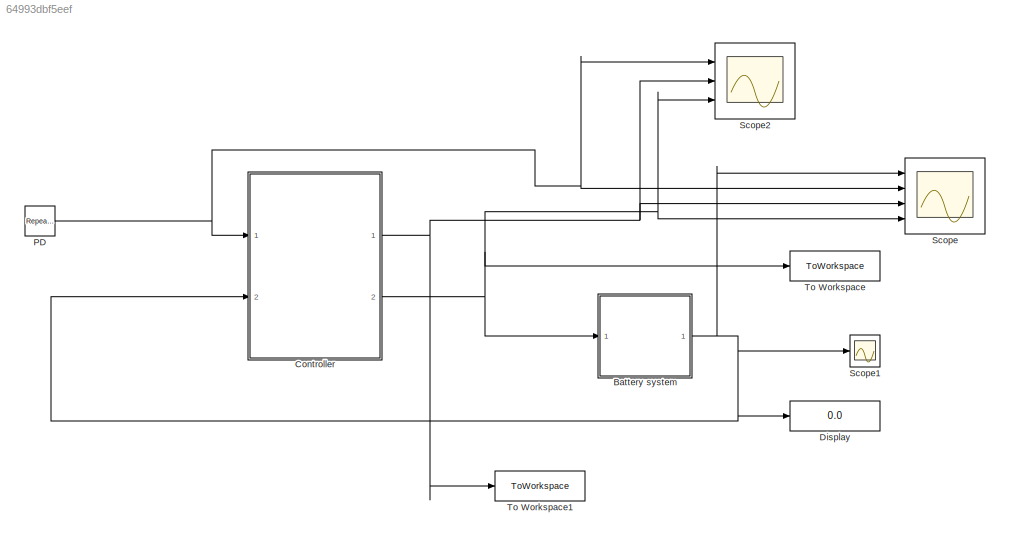
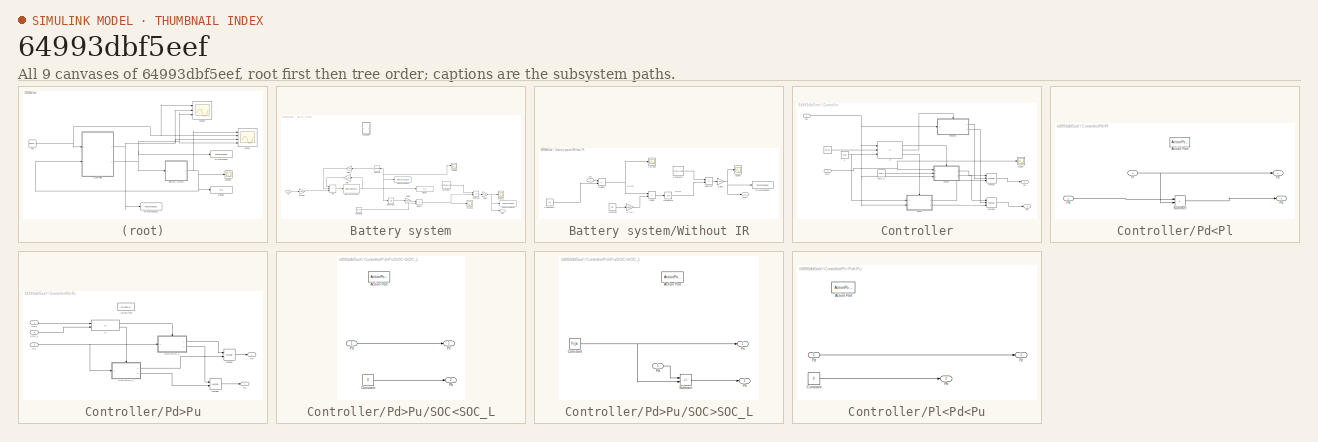
[diagram: thumbnail index - all 9 canvases of the model, root first then tree order]
MODEL slx_64993dbf5eef
KIND model
CONFIG AbsTol = auto
CONFIG EnableMultiTasking = off
CONFIG FixedStep = auto
CONFIG MaxStep = auto
CONFIG MinStep = auto
CONFIG RelTol = 1
CONFIG SampleTimeConstraint = Unconstrained
CONFIG SolverName = VariableStepAuto
CONFIG StartTime = 0.0
CONFIG StopTime = 8210
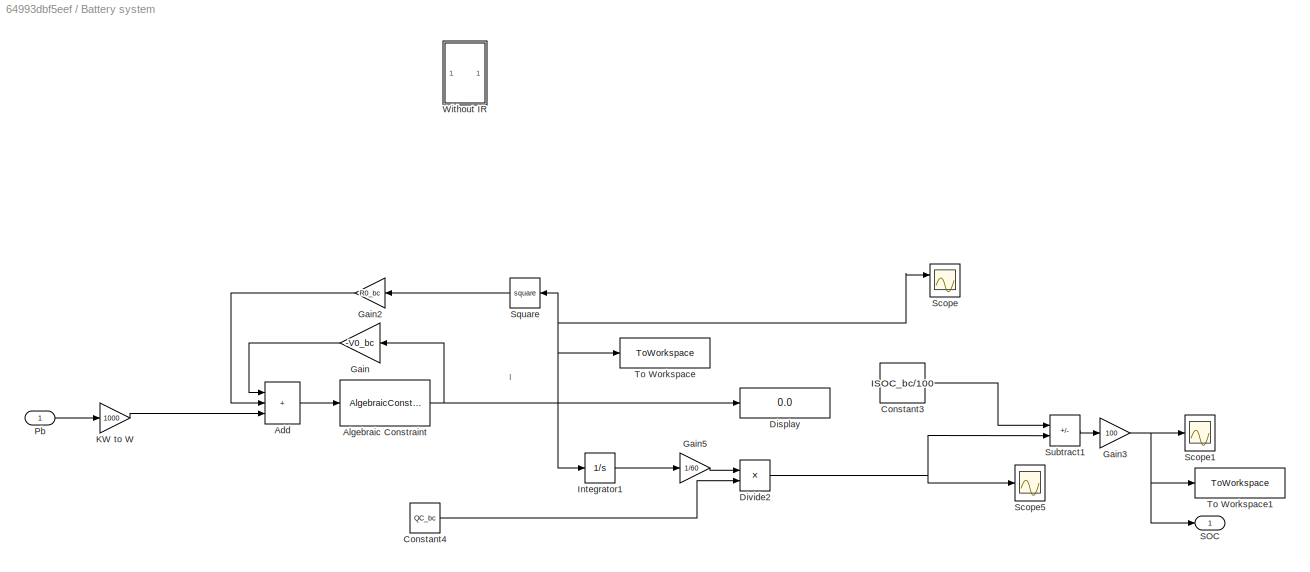
BLOCK [SubSystem] Battery system
  Ports = [1, 1]
  RequestExecContextInheritance = off
BLOCK [Sum] Battery system/Add
  IconShape = rectangular
  Inputs = +++
  Ports = [3, 1]
BLOCK [AlgebraicConstraint] Battery system/Algebraic Constraint
  InitialGuess = -999999999999
BLOCK [Constant] Battery system/Constant3
  Value = ISOC_bc/100
BLOCK [Constant] Battery system/Constant4
  Value = QC_bc
BLOCK [Display] Battery system/Display
  Decimation = 1
  Ports = [1]
BLOCK [Product] Battery system/Divide2
  Inputs = */
  Ports = [2, 1]
BLOCK [Gain] Battery system/Gain
  Gain = -V0_bc
  NameLocation = top
BLOCK [Gain] Battery system/Gain2
  Gain = R0_bc
  NameLocation = top
BLOCK [Gain] Battery system/Gain3
  Gain = 100
BLOCK [Gain] Battery system/Gain5
  Gain = 1/60
BLOCK [Integrator] Battery system/Integrator1
  Ports = [1, 1]
BLOCK [Gain] Battery system/KW to W
  Gain = 1000
BLOCK [Inport] Battery system/Pb
BLOCK [Outport] Battery system/SOC
BLOCK [Scope] Battery system/Scope
  Floating = off
  NumInputPorts = 2
  Ports = [2]
  ScopeSpecificationString = Simulink.scopes.TimeScopeBlockCfg('CurrentConfiguration', extmgr.ConfigurationSet(extmgr.Configuration('Core','General UI',true),extmgr.Configuration('Core','Source UI',true),extmgr.Configuration('Sources','WiredSimulink',true,'DataLoggingVariableName','ScopeData1'),extmgr.Configuration('Visuals','Time Domain',true,'SerializedDisplays',{struct('MinYLimReal','-992.74884','MaxYLimReal','838.40989','...<+1478ch>
BLOCK [Scope] Battery system/Scope1
  Floating = off
  NumInputPorts = 1
  Ports = [1]
  ScopeSpecificationString = Simulink.scopes.TimeScopeBlockCfg('CurrentConfiguration', extmgr.ConfigurationSet(extmgr.Configuration('Core','General UI',true),extmgr.Configuration('Core','Source UI',true),extmgr.Configuration('Sources','WiredSimulink',true,'DataLoggingVariableName','ScopeData2'),extmgr.Configuration('Visuals','Time Domain',true,'SerializedDisplays',{struct('MinYLimReal','41.87168','MaxYLimReal','84.23648','YLa...<+1489ch>
BLOCK [Scope] Battery system/Scope5
  Floating = off
  NumInputPorts = 1
  Ports = [1]
  ScopeSpecificationString = Simulink.scopes.TimeScopeBlockCfg('CurrentConfiguration', extmgr.ConfigurationSet(extmgr.Configuration('Core','General UI',true),extmgr.Configuration('Core','Source UI',true),extmgr.Configuration('Sources','WiredSimulink',true,'DataLoggingVariableName','ScopeData6'),extmgr.Configuration('Visuals','Time Domain',true,'SerializedDisplays',{struct('MinYLimReal','-0.375','MaxYLimReal','0.375','YLabelRe...<+1470ch>
BLOCK [Math] Battery system/Square
  NameLocation = top
  Operator = square
  Ports = [1, 1]
BLOCK [Sum] Battery system/Subtract1
  IconShape = rectangular
  Inputs = +-
  Ports = [2, 1]
BLOCK [ToWorkspace] Battery system/To Workspace
  FixptAsFi = on
  MaxDataPoints = inf
  Ports = [1]
  SampleTime = -1
  SaveFormat = Structure With Time
  VariableName = I
BLOCK [ToWorkspace] Battery system/To Workspace1
  FixptAsFi = on
  MaxDataPoints = inf
  Ports = [1]
  SampleTime = -1
  SaveFormat = Structure With Time
  VariableName = s
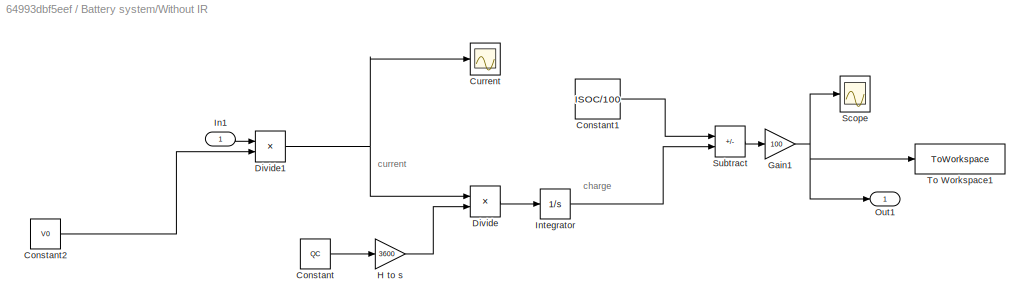
BLOCK [SubSystem] Battery system/Without IR
  Ports = [1, 1]
  RequestExecContextInheritance = off
BLOCK [Constant] Battery system/Without IR/Constant
  Commented = on
  Value = QC
BLOCK [Constant] Battery system/Without IR/Constant1
  Commented = on
  Value = ISOC/100
BLOCK [Constant] Battery system/Without IR/Constant2
  Commented = on
  Value = V0
BLOCK [Scope] Battery system/Without IR/Current
  Commented = on
  Floating = off
  NumInputPorts = 1
  Ports = [1]
  ScopeSpecificationString = Simulink.scopes.TimeScopeBlockCfg('CurrentConfiguration', extmgr.ConfigurationSet(extmgr.Configuration('Core','General UI',true),extmgr.Configuration('Core','Source UI',true),extmgr.Configuration('Sources','WiredSimulink',true,'DataLoggingVariableName','ScopeData4'),extmgr.Configuration('Visuals','Time Domain',true,'SerializedDisplays',{struct('MinYLimReal','-5611.34168','MaxYLimReal','5601.96893'...<+1417ch>
BLOCK [Product] Battery system/Without IR/Divide
  Commented = on
  Inputs = */
  Ports = [2, 1]
BLOCK [Product] Battery system/Without IR/Divide1
  Commented = on
  Inputs = */
  Ports = [2, 1]
BLOCK [Gain] Battery system/Without IR/Gain1
  Commented = on
  Gain = 100
BLOCK [Gain] Battery system/Without IR/H to s
  Commented = on
  Gain = 3600
BLOCK [Inport] Battery system/Without IR/In1
BLOCK [Integrator] Battery system/Without IR/Integrator
  Commented = on
  Ports = [1, 1]
BLOCK [Outport] Battery system/Without IR/Out1
BLOCK [Scope] Battery system/Without IR/Scope
  Commented = on
  Floating = off
  NumInputPorts = 1
  Ports = [1]
  ScopeSpecificationString = Simulink.scopes.TimeScopeBlockCfg('CurrentConfiguration', extmgr.ConfigurationSet(extmgr.Configuration('Core','General UI',true),extmgr.Configuration('Core','Source UI',true),extmgr.Configuration('Sources','WiredSimulink',true,'DataLoggingVariableName','ScopeData1'),extmgr.Configuration('Visuals','Time Domain',true,'SerializedDisplays',{struct('MinYLimReal','-74180.20543','MaxYLimReal','8297.8006'...<+1506ch>
BLOCK [Sum] Battery system/Without IR/Subtract
  Commented = on
  IconShape = rectangular
  Inputs = +-
  Ports = [2, 1]
BLOCK [ToWorkspace] Battery system/Without IR/To Workspace1
  Commented = on
  FixptAsFi = on
  MaxDataPoints = inf
  Ports = [1]
  SampleTime = -1
  VariableName = SOC
BLOCK [SubSystem] Controller
  Ports = [2, 2]
  RequestExecContextInheritance = off
BLOCK [Constant] Controller/   
  Value = Pu_bc
BLOCK [Constant] Controller/   1
  Value = Pl_bc
BLOCK [If] Controller/If
  ElseIfExpressions = u1>u3
  IfExpression = u1 > u2
  NumInputs = 3
  Ports = [3, 3]
BLOCK [Merge] Controller/Merge
  Inputs = 3
  Ports = [3, 1]
BLOCK [Merge] Controller/Merge1
  Inputs = 3
  Ports = [3, 1]
BLOCK [Outport] Controller/Pb
  Port = 2
BLOCK [Inport] Controller/Pd
BLOCK [SubSystem] Controller/Pd<Pl
  Ports = [2, 2, 0, 0, 0, 0, 0, 1]
  RequestExecContextInheritance = off
  TreatAsAtomicUnit = on
BLOCK [ActionPort] Controller/Pd<Pl/Action Port
  ActionPortLabel = else
BLOCK [Outport] Controller/Pd<Pl/Pb
  Port = 2
BLOCK [Inport] Controller/Pd<Pl/Pd
  Port = 2
BLOCK [Outport] Controller/Pd<Pl/Pe
BLOCK [Inport] Controller/Pd<Pl/Pl
BLOCK [Sum] Controller/Pd<Pl/Subtract
  IconShape = rectangular
  Inputs = +-
  Ports = [2, 1]
BLOCK [SubSystem] Controller/Pd>Pu
  Ports = [3, 2, 0, 0, 0, 0, 0, 1]
  RequestExecContextInheritance = off
  TreatAsAtomicUnit = on
BLOCK [ActionPort] Controller/Pd>Pu/Action Port
  ActionPortLabel = if(u1 > u2)
BLOCK [If] Controller/Pd>Pu/If
  IfExpression = u1 > u2
  NumInputs = 2
  Ports = [2, 2]
BLOCK [Merge] Controller/Pd>Pu/Merge
  Ports = [2, 1]
BLOCK [Merge] Controller/Pd>Pu/Merge1
  Ports = [2, 1]
BLOCK [Outport] Controller/Pd>Pu/Pb
  Port = 2
BLOCK [Inport] Controller/Pd>Pu/Pd
  Port = 3
BLOCK [Outport] Controller/Pd>Pu/Pe
BLOCK [Inport] Controller/Pd>Pu/SOC
BLOCK [SubSystem] Controller/Pd>Pu/SOC<SOC_L
  Ports = [1, 2, 0, 0, 0, 0, 0, 1]
  RequestExecContextInheritance = off
  TreatAsAtomicUnit = on
BLOCK [ActionPort] Controller/Pd>Pu/SOC<SOC_L/Action Port
  ActionPortLabel = else
BLOCK [Constant] Controller/Pd>Pu/SOC<SOC_L/Constant
  Value = 0
BLOCK [Outport] Controller/Pd>Pu/SOC<SOC_L/Pb
  Port = 2
BLOCK [Inport] Controller/Pd>Pu/SOC<SOC_L/Pd
BLOCK [Outport] Controller/Pd>Pu/SOC<SOC_L/Pe
BLOCK [SubSystem] Controller/Pd>Pu/SOC>SOC_L
  Ports = [1, 2, 0, 0, 0, 0, 0, 1]
  RequestExecContextInheritance = off
  TreatAsAtomicUnit = on
BLOCK [ActionPort] Controller/Pd>Pu/SOC>SOC_L/Action Port
  ActionPortLabel = if(u1 > u2)
BLOCK [Constant] Controller/Pd>Pu/SOC>SOC_L/Constant
  Value = Pu_bc
BLOCK [Outport] Controller/Pd>Pu/SOC>SOC_L/Pb
  Port = 2
BLOCK [Inport] Controller/Pd>Pu/SOC>SOC_L/Pd
BLOCK [Outport] Controller/Pd>Pu/SOC>SOC_L/Pe
BLOCK [Sum] Controller/Pd>Pu/SOC>SOC_L/Subtract
  IconShape = rectangular
  Inputs = +-
  Ports = [2, 1]
BLOCK [Inport] Controller/Pd>Pu/SOC_L
  Port = 2
BLOCK [Outport] Controller/Pe
BLOCK [SubSystem] Controller/Pl<Pd<Pu
  Ports = [1, 2, 0, 0, 0, 0, 0, 1]
  RequestExecContextInheritance = off
  TreatAsAtomicUnit = on
BLOCK [ActionPort] Controller/Pl<Pd<Pu/Action Port
  ActionPortLabel = elseif(u1>u3)
BLOCK [Constant] Controller/Pl<Pd<Pu/Constant
  Value = 0
BLOCK [Outport] Controller/Pl<Pd<Pu/Pb
  Port = 2
BLOCK [Inport] Controller/Pl<Pd<Pu/Pd
BLOCK [Outport] Controller/Pl<Pd<Pu/Pe
BLOCK [Inport] Controller/SOC
  Port = 2
BLOCK [Constant] Controller/SOC_L
  NameLocation = left
  Value = SOC_L
BLOCK [Scope] Controller/Scope
  Floating = off
  NumInputPorts = 1
  Ports = [1]
  ScopeSpecificationString = Simulink.scopes.TimeScopeBlockCfg('CurrentConfiguration', extmgr.ConfigurationSet(extmgr.Configuration('Core','General UI',true),extmgr.Configuration('Core','Source UI',true),extmgr.Configuration('Sources','WiredSimulink',true,'DataLoggingVariableName','ScopeData1'),extmgr.Configuration('Visuals','Time Domain',true,'SerializedDisplays',{struct('MinYLimReal','59.98264','MaxYLimReal','60.15625','YLa...<+1457ch>
BLOCK [Display] Display
  Decimation = 1
  Ports = [1]
BLOCK [Reference] PD  REF=simulink/Sources/Repeating
Sequence
Interpolated
  Ports = [0, 1]
  SourceBlock = simulink/Sources/Repeating\nSequence\nInterpolated
  SourceProductBaseCode = SL
  SourceType = Repeating Sequence Interpolated
BLOCK [Scope] Scope
  Floating = off
  NumInputPorts = 4
  Ports = [4]
  ScopeSpecificationString = Simulink.scopes.TimeScopeBlockCfg('CurrentConfiguration', extmgr.ConfigurationSet(extmgr.Configuration('Core','General UI',true,'FigureColor',[1 1 1]),extmgr.Configuration('Core','Source UI',true),extmgr.Configuration('Sources','WiredSimulink',true),extmgr.Configuration('Visuals','Time Domain',true,'SerializedDisplays',{struct('MinYLimReal','83.03206','MaxYLimReal','90.77422','YLabelReal','','MinY...<+2564ch>
BLOCK [Scope] Scope1
  Floating = off
  NumInputPorts = 1
  Ports = [1]
  ScopeSpecificationString = Simulink.scopes.TimeScopeBlockCfg('CurrentConfiguration', extmgr.ConfigurationSet(extmgr.Configuration('Core','General UI',true),extmgr.Configuration('Core','Source UI',true),extmgr.Configuration('Sources','WiredSimulink',true,'DataLoggingVariableName','ScopeData3'),extmgr.Configuration('Visuals','Time Domain',true,'SerializedDisplays',{struct('MinYLimReal','57.66059','MaxYLimReal','57.8512','YLab...<+1547ch>
BLOCK [Scope] Scope2
  Floating = off
  NumInputPorts = 3
  Ports = [3]
  ScopeSpecificationString = Simulink.scopes.TimeScopeBlockCfg('CurrentConfiguration', extmgr.ConfigurationSet(extmgr.Configuration('Core','General UI',true,'FigureColor',[1 1 1]),extmgr.Configuration('Core','Source UI',true),extmgr.Configuration('Sources','WiredSimulink',true,'DataLoggingVariableName','ScopeData1'),extmgr.Configuration('Visuals','Time Domain',true,'SerializedDisplays',{struct('MinYLimReal','347.56734','MaxYL...<+2635ch>
BLOCK [ToWorkspace] To Workspace
  FixptAsFi = on
  MaxDataPoints = inf
  Ports = [1]
  SampleTime = -1
  VariableName = P_b
BLOCK [ToWorkspace] To Workspace1
  FixptAsFi = on
  MaxDataPoints = inf
  Ports = [1]
  SampleTime = -1
  VariableName = P_e
ANNOTATION Battery system: I
ANNOTATION Battery system/Without IR: charge
ANNOTATION Battery system/Without IR: current
LINE Battery system/Add:1 -> Battery system/Algebraic Constraint:1
NET Battery system/Algebraic Constraint:1 -> Battery system/Display:1, Battery system/Gain:1, Battery system/Integrator1:1, Battery system/Scope:1, Battery system/Square:1, Battery system/To Workspace:1
LINE Battery system/Constant3:1 -> Battery system/Subtract1:1
LINE Battery system/Constant4:1 -> Battery system/Divide2:2
NET Battery system/Divide2:1 -> Battery system/Scope5:1, Battery system/Subtract1:2
LINE Battery system/Gain2:1 -> Battery system/Add:2
NET Battery system/Gain3:1 -> Battery system/SOC:1, Battery system/Scope1:1, Battery system/To Workspace1:1
LINE Battery system/Gain5:1 -> Battery system/Divide2:1
LINE Battery system/Gain:1 -> Battery system/Add:1
LINE Battery system/Integrator1:1 -> Battery system/Gain5:1
LINE Battery system/KW to W:1 -> Battery system/Add:3
LINE Battery system/Pb:1 -> Battery system/KW to W:1
LINE Battery system/Square:1 -> Battery system/Gain2:1
LINE Battery system/Subtract1:1 -> Battery system/Gain3:1
LINE Battery system/Without IR/Constant1:1 -> Battery system/Without IR/Subtract:1
LINE Battery system/Without IR/Constant2:1 -> Battery system/Without IR/Divide1:2
LINE Battery system/Without IR/Constant:1 -> Battery system/Without IR/H to s:1
NET Battery system/Without IR/Divide1:1 -> Battery system/Without IR/Current:1, Battery system/Without IR/Divide:1
LINE Battery system/Without IR/Divide:1 -> Battery system/Without IR/Integrator:1
NET Battery system/Without IR/Gain1:1 -> Battery system/Without IR/Out1:1, Battery system/Without IR/Scope:1, Battery system/Without IR/To Workspace1:1
LINE Battery system/Without IR/H to s:1 -> Battery system/Without IR/Divide:2
LINE Battery system/Without IR/In1:1 -> Battery system/Without IR/Divide1:1
LINE Battery system/Without IR/Integrator:1 -> Battery system/Without IR/Subtract:2
LINE Battery system/Without IR/Subtract:1 -> Battery system/Without IR/Gain1:1
NET Battery system:1 -> Controller:2, Display:1, Scope1:1, Scope:1
NET Controller/   1:1 -> Controller/If:3, Controller/Pd<Pl:1
LINE Controller/   :1 -> Controller/If:2
LINE Controller/If:1 -> Controller/Pd>Pu:ifaction
LINE Controller/If:2 -> Controller/Pl<Pd<Pu:ifaction
LINE Controller/If:3 -> Controller/Pd<Pl:ifaction
LINE Controller/Merge1:1 -> Controller/Pb:1
LINE Controller/Merge:1 -> Controller/Pe:1
NET Controller/Pd:1 -> Controller/If:1, Controller/Pd<Pl:2, Controller/Pd>Pu:3, Controller/Pl<Pd<Pu:1
LINE Controller/Pd<Pl/Pd:1 -> Controller/Pd<Pl/Subtract:1
NET Controller/Pd<Pl/Pl:1 -> Controller/Pd<Pl/Pe:1, Controller/Pd<Pl/Subtract:2
LINE Controller/Pd<Pl/Subtract:1 -> Controller/Pd<Pl/Pb:1
LINE Controller/Pd<Pl:1 -> Controller/Merge:3
LINE Controller/Pd<Pl:2 -> Controller/Merge1:3
LINE Controller/Pd>Pu/If:1 -> Controller/Pd>Pu/SOC>SOC_L:ifaction
LINE Controller/Pd>Pu/If:2 -> Controller/Pd>Pu/SOC<SOC_L:ifaction
LINE Controller/Pd>Pu/Merge1:1 -> Controller/Pd>Pu/Pb:1
LINE Controller/Pd>Pu/Merge:1 -> Controller/Pd>Pu/Pe:1
NET Controller/Pd>Pu/Pd:1 -> Controller/Pd>Pu/SOC<SOC_L:1, Controller/Pd>Pu/SOC>SOC_L:1
LINE Controller/Pd>Pu/SOC:1 -> Controller/Pd>Pu/If:1
LINE Controller/Pd>Pu/SOC<SOC_L/Constant:1 -> Controller/Pd>Pu/SOC<SOC_L/Pb:1
LINE Controller/Pd>Pu/SOC<SOC_L/Pd:1 -> Controller/Pd>Pu/SOC<SOC_L/Pe:1
LINE Controller/Pd>Pu/SOC<SOC_L:1 -> Controller/Pd>Pu/Merge:2
LINE Controller/Pd>Pu/SOC<SOC_L:2 -> Controller/Pd>Pu/Merge1:2
NET Controller/Pd>Pu/SOC>SOC_L/Constant:1 -> Controller/Pd>Pu/SOC>SOC_L/Pe:1, Controller/Pd>Pu/SOC>SOC_L/Subtract:2
LINE Controller/Pd>Pu/SOC>SOC_L/Pd:1 -> Controller/Pd>Pu/SOC>SOC_L/Subtract:1
LINE Controller/Pd>Pu/SOC>SOC_L/Subtract:1 -> Controller/Pd>Pu/SOC>SOC_L/Pb:1
LINE Controller/Pd>Pu/SOC>SOC_L:1 -> Controller/Pd>Pu/Merge:1
LINE Controller/Pd>Pu/SOC>SOC_L:2 -> Controller/Pd>Pu/Merge1:1
LINE Controller/Pd>Pu/SOC_L:1 -> Controller/Pd>Pu/If:2
LINE Controller/Pd>Pu:1 -> Controller/Merge:1
LINE Controller/Pd>Pu:2 -> Controller/Merge1:1
LINE Controller/Pl<Pd<Pu/Constant:1 -> Controller/Pl<Pd<Pu/Pb:1
LINE Controller/Pl<Pd<Pu/Pd:1 -> Controller/Pl<Pd<Pu/Pe:1
LINE Controller/Pl<Pd<Pu:1 -> Controller/Merge:2
LINE Controller/Pl<Pd<Pu:2 -> Controller/Merge1:2
NET Controller/SOC:1 -> Controller/Pd>Pu:1, Controller/Scope:1
LINE Controller/SOC_L:1 -> Controller/Pd>Pu:2
NET Controller:1 -> Scope2:2, Scope:3, To Workspace1:1
NET Controller:2 -> Battery system:1, Scope2:3, Scope:4, To Workspace:1
NET PD:1 -> Controller:1, Scope2:1, Scope:2
note: NET lines group one-source signal fan-out (src -> all destinations, sorted); 1:1 wires keep LINE
